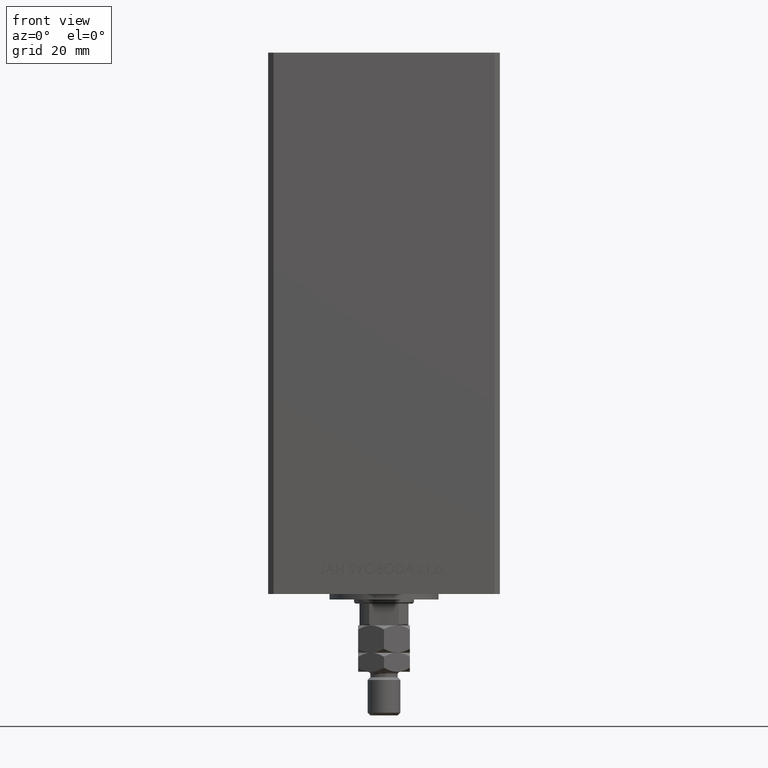
[diagram: clean part render]
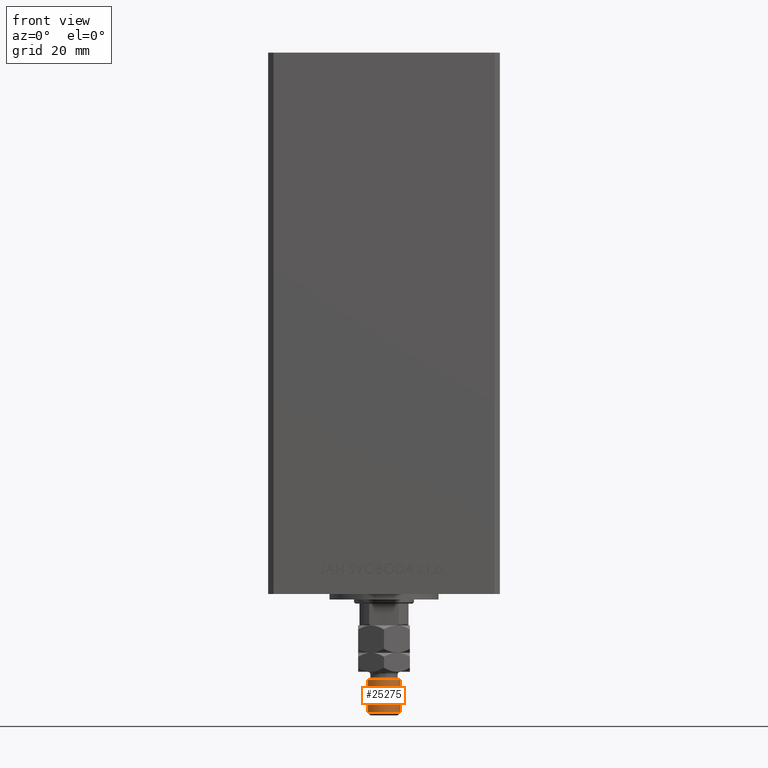
[diagram: same view with one face highlighted and labeled with its STEP entity id]
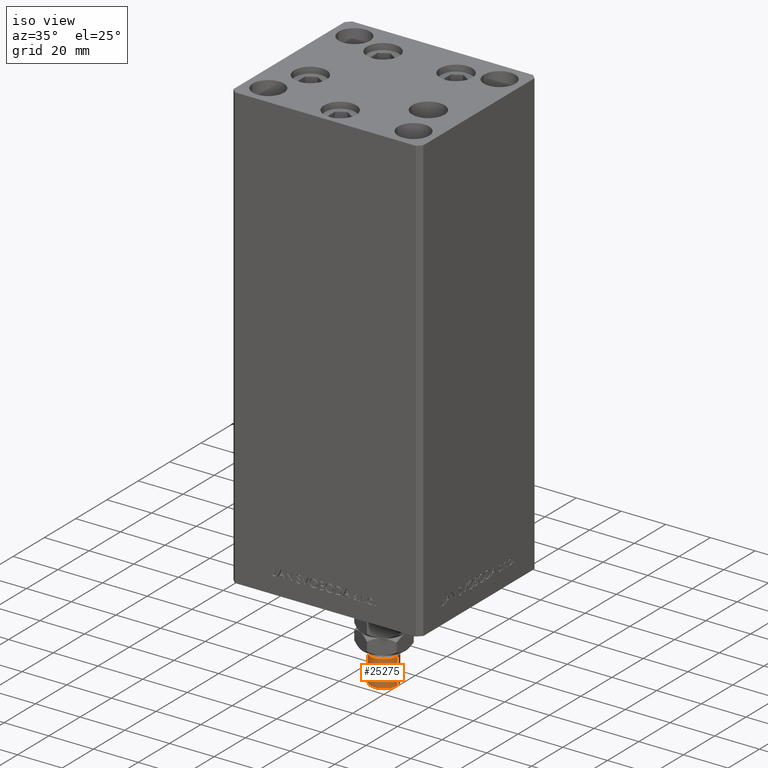
[diagram: same view with one face highlighted and labeled with its STEP entity id]
A machine part, front view. The second image highlights one B-rep face of the part: STEP entity #25275.
A second angle (iso view) of the same face is appended — the face is thin or edge-on in the first view.
In plain terms, the highlighted cylindrical surface (edge-blend (fillet) strip) has radius 6 mm, axis along (0, -0, 1).
Its self-contained STEP definition (entity closure, byte-faithful):
#694 = VERTEX_POINT ( 'NONE', #24654 ) ;
#1363 = DIRECTION ( 'NONE',  ( 1.000000000000000000, 0.000000000000000000, 0.000000000000000000 ) ) ;
#2684 = CARTESIAN_POINT ( 'NONE',  ( 6.000000000000000888, 7.347880794884120722E-16, 32.00000000000000000 ) ) ;
#2959 = CIRCLE ( 'NONE', #16000, 6.000000000000000888 ) ;
#4747 = CARTESIAN_POINT ( 'NONE',  ( -6.000000000000000888, 0.000000000000000000, 20.00000000000000711 ) ) ;
#5297 = VERTEX_POINT ( 'NONE', #4747 ) ;
#6166 = DIRECTION ( 'NONE',  ( 0.000000000000000000, 0.000000000000000000, -1.000000000000000000 ) ) ;
#6222 = DIRECTION ( 'NONE',  ( -0.000000000000000000, -0.000000000000000000, 1.000000000000000000 ) ) ;
#7086 = AXIS2_PLACEMENT_3D ( 'NONE', #41157, #6166, #35875 ) ;
#7392 = VERTEX_POINT ( 'NONE', #2684 ) ;
#8208 = CARTESIAN_POINT ( 'NONE',  ( -6.000000000000000888, 0.000000000000000000, 32.00000000000000000 ) ) ;
#9655 = FACE_OUTER_BOUND ( 'NONE', #24962, .T. ) ;
#9758 = EDGE_CURVE ( 'NONE', #5297, #694, #2959, .T. ) ;
#9879 = VERTEX_POINT ( 'NONE', #8208 ) ;
#11796 = DIRECTION ( 'NONE',  ( -0.000000000000000000, -0.000000000000000000, -1.000000000000000000 ) ) ;
#13362 = CARTESIAN_POINT ( 'NONE',  ( 0.000000000000000000, 0.000000000000000000, 20.00000000000000711 ) ) ;
#14015 = DIRECTION ( 'NONE',  ( -0.000000000000000000, -0.000000000000000000, -1.000000000000000000 ) ) ;
#14509 = DIRECTION ( 'NONE',  ( -1.000000000000000000, 0.000000000000000000, 0.000000000000000000 ) ) ;
#15663 = CARTESIAN_POINT ( 'NONE',  ( 6.000000000000000888, 7.347880794884120722E-16, 33.00000000000000000 ) ) ;
#16000 = AXIS2_PLACEMENT_3D ( 'NONE', #13362, #6222, #1363 ) ;
#17726 = CIRCLE ( 'NONE', #7086, 6.000000000000000888 ) ;
#22671 = EDGE_CURVE ( 'NONE', #7392, #694, #30762, .T. ) ;
#22832 = DIRECTION ( 'NONE',  ( -0.000000000000000000, -0.000000000000000000, -1.000000000000000000 ) ) ;
#24654 = CARTESIAN_POINT ( 'NONE',  ( 6.000000000000000888, 7.347880794884120722E-16, 20.00000000000000711 ) ) ;
#24962 = EDGE_LOOP ( 'NONE', ( #29964, #45151, #41745, #38510 ) ) ;
#25275 = ADVANCED_FACE ( 'NONE', ( #9655 ), #33687, .T. ) ;
#27398 = CARTESIAN_POINT ( 'NONE',  ( -6.000000000000000888, 0.000000000000000000, 33.00000000000000000 ) ) ;
#29964 = ORIENTED_EDGE ( 'NONE', *, *, #22671, .F. ) ;
#30762 = LINE ( 'NONE', #15663, #37931 ) ;
#31391 = EDGE_CURVE ( 'NONE', #7392, #9879, #17726, .T. ) ;
#33445 = CARTESIAN_POINT ( 'NONE',  ( 0.000000000000000000, 0.000000000000000000, 33.00000000000000000 ) ) ;
#33687 = CYLINDRICAL_SURFACE ( 'NONE', #35396, 6.000000000000000888 ) ;
#35396 = AXIS2_PLACEMENT_3D ( 'NONE', #33445, #14015, #14509 ) ;
#35875 = DIRECTION ( 'NONE',  ( 1.000000000000000000, 0.000000000000000000, 0.000000000000000000 ) ) ;
#37931 = VECTOR ( 'NONE', #22832, 1000.000000000000000 ) ;
#38510 = ORIENTED_EDGE ( 'NONE', *, *, #9758, .T. ) ;
#41157 = CARTESIAN_POINT ( 'NONE',  ( 0.000000000000000000, 0.000000000000000000, 32.00000000000000000 ) ) ;
#41745 = ORIENTED_EDGE ( 'NONE', *, *, #48693, .T. ) ;
#43471 = VECTOR ( 'NONE', #11796, 1000.000000000000000 ) ;
#43723 = LINE ( 'NONE', #27398, #43471 ) ;
#45151 = ORIENTED_EDGE ( 'NONE', *, *, #31391, .T. ) ;
#48693 = EDGE_CURVE ( 'NONE', #9879, #5297, #43723, .T. ) ;